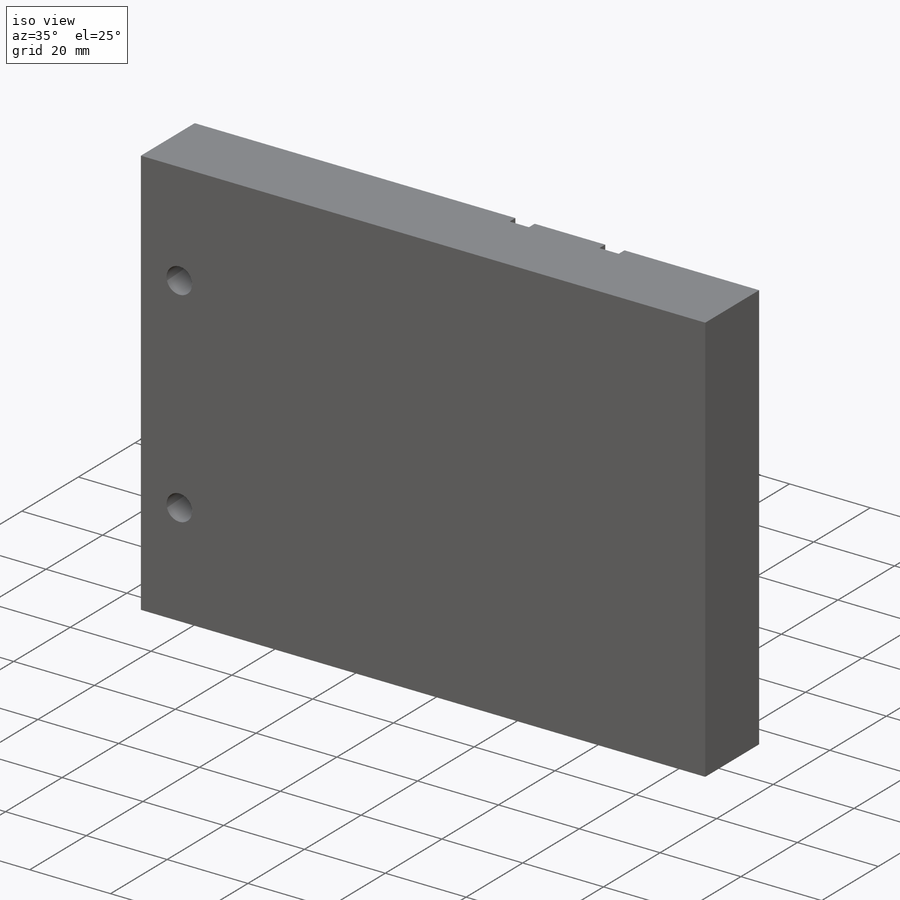
[diagram: iso view]
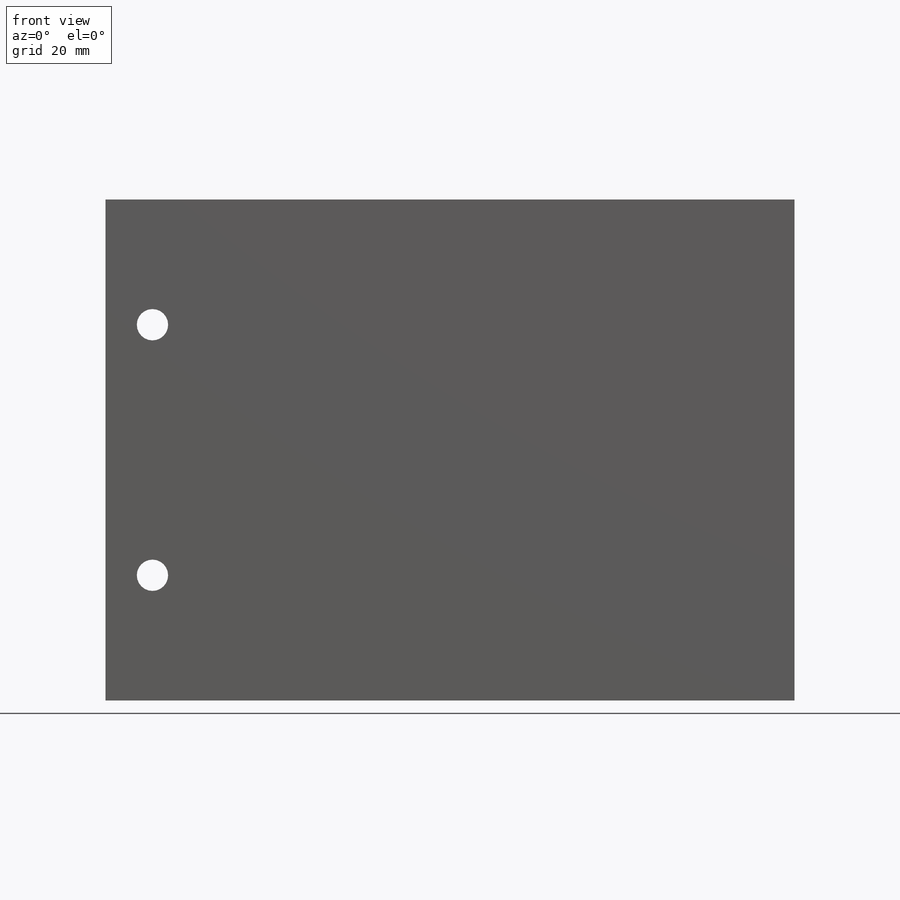
[diagram: front view]
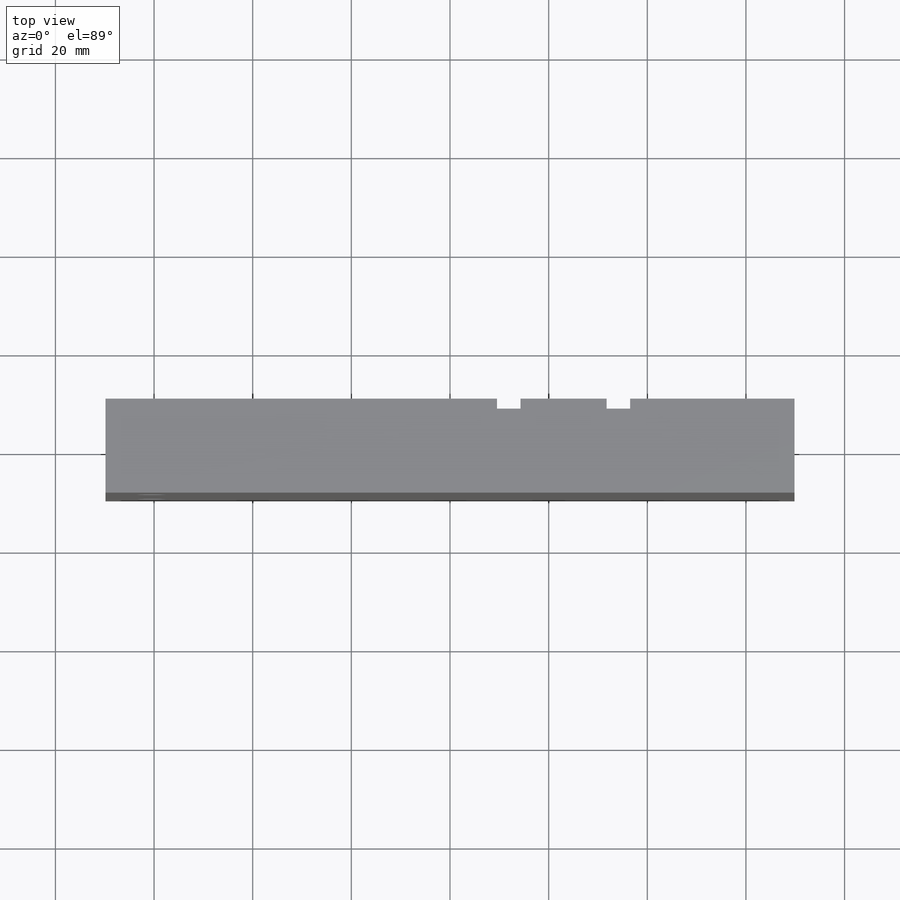
[diagram: top view]
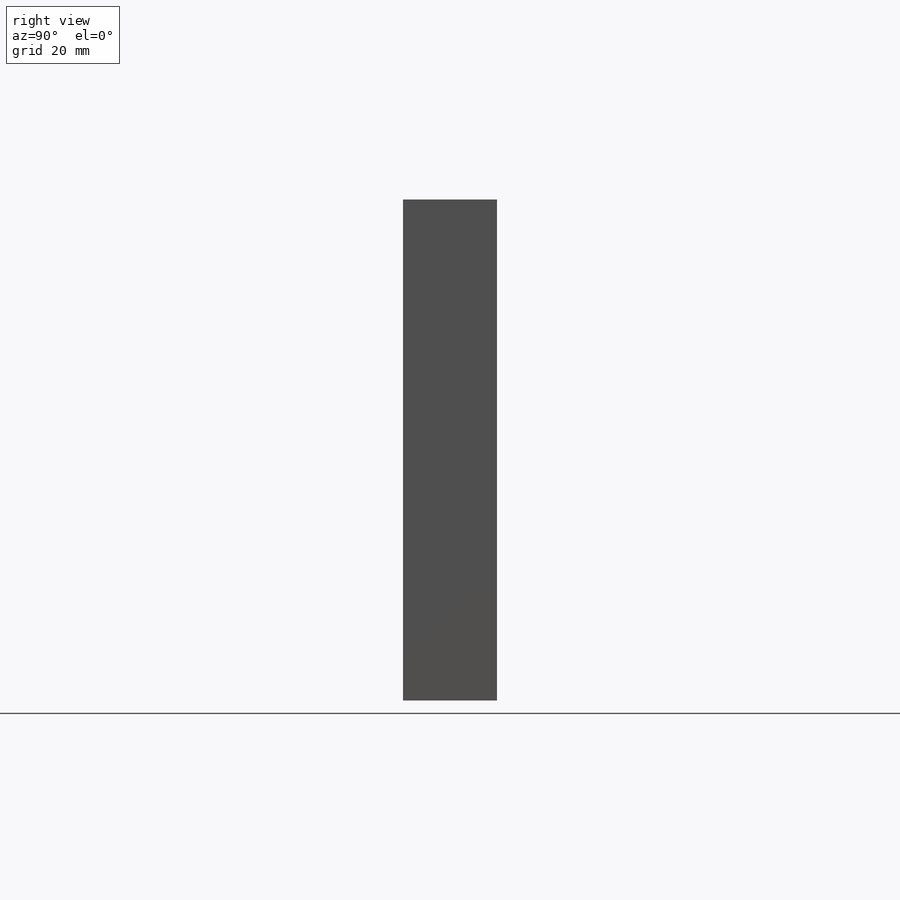
[diagram: right view]
SOLIDWORKS PART (.sldprt)
format: sldprt  version: not decoded by parser v0  size: 347,648 bytes
history: native  units: mm
features: sketch x3, material x1, extrude x1, hole x1 (+11 scaffold rows collapsed)
feature tree (17):
  scaffold x11  (default folders/planes/origin — collapsed)
  material  "Pine"
  sketch  "3DSketch2"  dims[D1=139.7mm D2=19.05mm D3=33.3375mm D4=60.325mm D5=4.7625mm D6=2.032mm]
  extrude  "Boss-Extrude3"  Depth=101.6mm
  hole  "1/4 (0.25) Diameter Hole1"  Diameter=6.35mm Depth=19.05mm
  sketch  "Sketch7"  dims[D1=9.525mm D2=25.4mm D3=25.4mm]
  sketch  "Sketch6"  dims[hole-wizard template sketch: 60 standard entries collapsed; hole parameters kept: c18.Thru Hole Depth=19.05mm]
decode coverage: 5 of 5 modeling features carry decoded parameters
note: ~ marks probable driven/reference dimensions
note: suppression state not decoded; provenance and decode notes live in map.json
